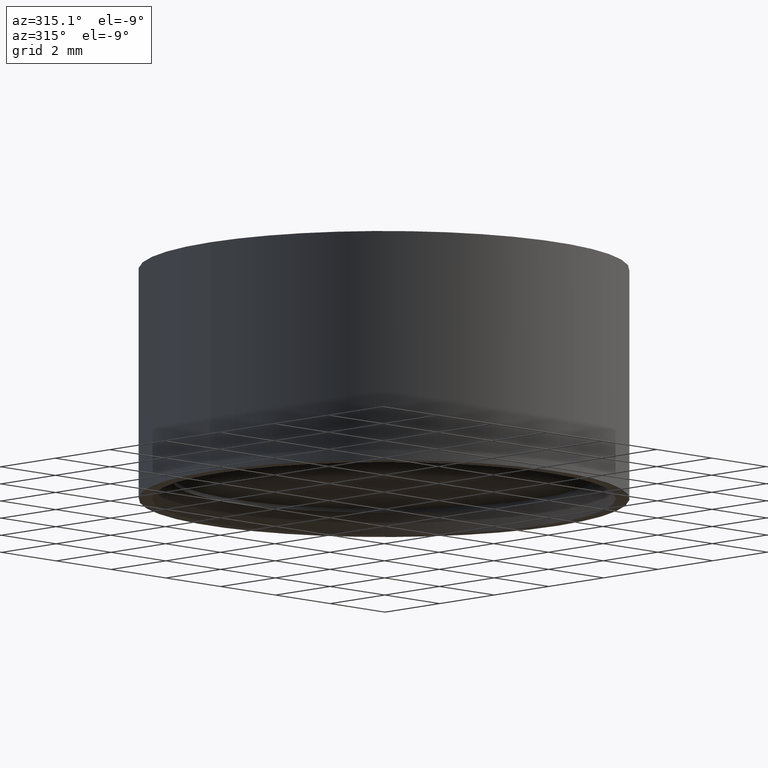
[diagram: clean part render]
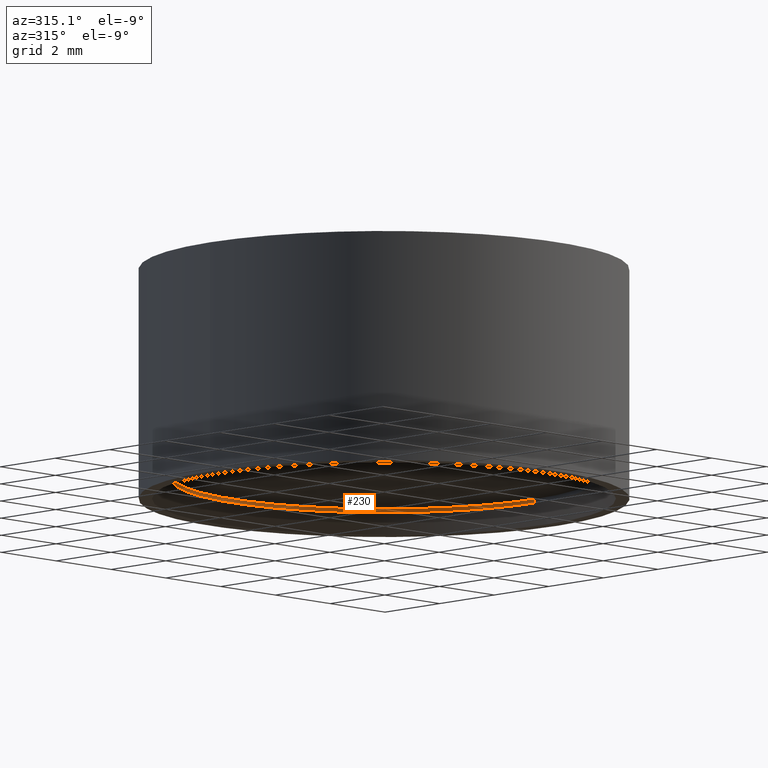
[diagram: same view with one face highlighted and labeled with its STEP entity id]
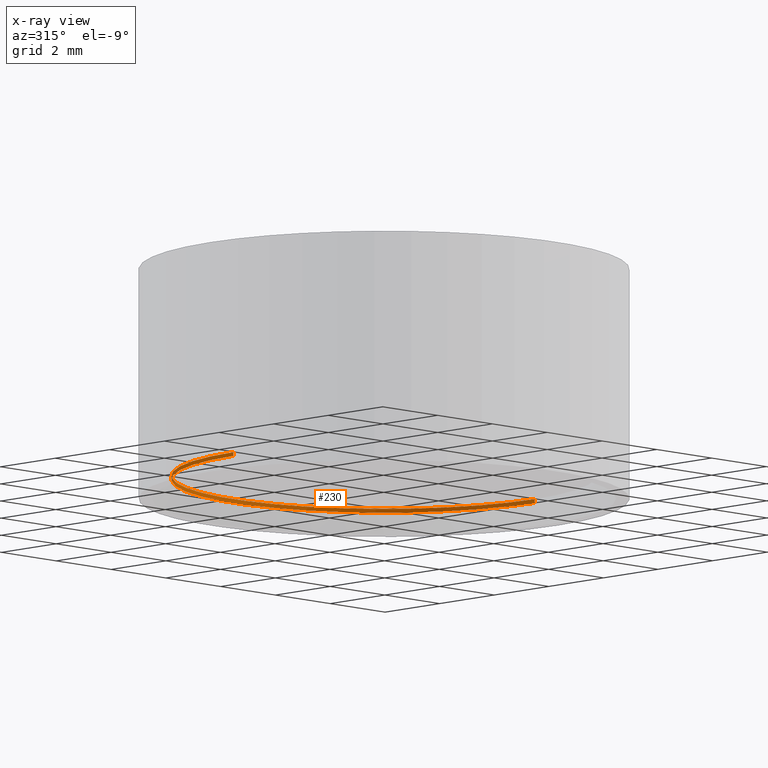
[diagram: x-ray of the same camera — body ghosted, the highlighted face saturated]
A machine part, auxiliary view. The second image highlights one B-rep face of the part: STEP entity #230.
The next image is the same camera in x-ray: the body ghosted, the highlighted face saturated — about 2% of this face is hidden behind the body in this view.
In plain terms, the highlighted cylindrical surface (partial cylindrical patch) has radius 5.5 mm, axis along (-0, -0, -1).
Its self-contained STEP definition (entity closure, byte-faithful):
#7 = CARTESIAN_POINT ( 'NONE',  ( 5.500000000000000000, 6.735557395310442023E-16, 0.5999999999999999778 ) ) ;
#23 = CARTESIAN_POINT ( 'NONE',  ( 0.000000000000000000, 0.000000000000000000, 0.5999999999999999778 ) ) ;
#27 = CARTESIAN_POINT ( 'NONE',  ( -5.500000000000000000, 0.000000000000000000, 0.4999999999999987232 ) ) ;
#53 = VECTOR ( 'NONE', #124, 1000.000000000000000 ) ;
#58 = CARTESIAN_POINT ( 'NONE',  ( 5.500000000000000000, 6.735557395310442023E-16, 0.5999999999999999778 ) ) ;
#67 = AXIS2_PLACEMENT_3D ( 'NONE', #23, #404, #103 ) ;
#69 = DIRECTION ( 'NONE',  ( 1.000000000000000000, 0.000000000000000000, 0.000000000000000000 ) ) ;
#77 = CIRCLE ( 'NONE', #313, 5.500000000000000000 ) ;
#87 = CIRCLE ( 'NONE', #269, 5.500000000000000000 ) ;
#89 = EDGE_CURVE ( 'NONE', #493, #458, #391, .T. ) ;
#103 = DIRECTION ( 'NONE',  ( -1.000000000000000000, 0.000000000000000000, 0.000000000000000000 ) ) ;
#104 = VECTOR ( 'NONE', #153, 1000.000000000000000 ) ;
#124 = DIRECTION ( 'NONE',  ( -0.000000000000000000, -0.000000000000000000, -1.000000000000000000 ) ) ;
#137 = FACE_OUTER_BOUND ( 'NONE', #467, .T. ) ;
#145 = DIRECTION ( 'NONE',  ( 0.000000000000000000, 0.000000000000000000, -1.000000000000000000 ) ) ;
#151 = CARTESIAN_POINT ( 'NONE',  ( -5.500000000000000000, 0.000000000000000000, 0.5999999999999999778 ) ) ;
#152 = VERTEX_POINT ( 'NONE', #359 ) ;
#153 = DIRECTION ( 'NONE',  ( -0.000000000000000000, -0.000000000000000000, -1.000000000000000000 ) ) ;
#164 = LINE ( 'NONE', #7, #104 ) ;
#190 = ORIENTED_EDGE ( 'NONE', *, *, #310, .T. ) ;
#227 = DIRECTION ( 'NONE',  ( 0.000000000000000000, 0.000000000000000000, -1.000000000000000000 ) ) ;
#230 = ADVANCED_FACE ( 'NONE', ( #137 ), #248, .F. ) ;
#248 = CYLINDRICAL_SURFACE ( 'NONE', #67, 5.500000000000000000 ) ;
#265 = CARTESIAN_POINT ( 'NONE',  ( 0.000000000000000000, 0.000000000000000000, 0.5999999999999999778 ) ) ;
#269 = AXIS2_PLACEMENT_3D ( 'NONE', #265, #227, #480 ) ;
#274 = ORIENTED_EDGE ( 'NONE', *, *, #383, .F. ) ;
#282 = CARTESIAN_POINT ( 'NONE',  ( -5.500000000000000000, 0.000000000000000000, 0.5999999999999999778 ) ) ;
#310 = EDGE_CURVE ( 'NONE', #458, #152, #77, .T. ) ;
#313 = AXIS2_PLACEMENT_3D ( 'NONE', #414, #145, #69 ) ;
#334 = EDGE_CURVE ( 'NONE', #456, #152, #164, .T. ) ;
#359 = CARTESIAN_POINT ( 'NONE',  ( 5.500000000000000000, 6.735557395310442023E-16, 0.4999999999999987232 ) ) ;
#383 = EDGE_CURVE ( 'NONE', #493, #456, #87, .T. ) ;
#391 = LINE ( 'NONE', #282, #53 ) ;
#404 = DIRECTION ( 'NONE',  ( -0.000000000000000000, -0.000000000000000000, -1.000000000000000000 ) ) ;
#413 = ORIENTED_EDGE ( 'NONE', *, *, #334, .F. ) ;
#414 = CARTESIAN_POINT ( 'NONE',  ( 0.000000000000000000, 0.000000000000000000, 0.4999999999999987232 ) ) ;
#415 = ORIENTED_EDGE ( 'NONE', *, *, #89, .T. ) ;
#456 = VERTEX_POINT ( 'NONE', #58 ) ;
#458 = VERTEX_POINT ( 'NONE', #27 ) ;
#467 = EDGE_LOOP ( 'NONE', ( #413, #274, #415, #190 ) ) ;
#480 = DIRECTION ( 'NONE',  ( -1.000000000000000000, 0.000000000000000000, 0.000000000000000000 ) ) ;
#493 = VERTEX_POINT ( 'NONE', #151 ) ;